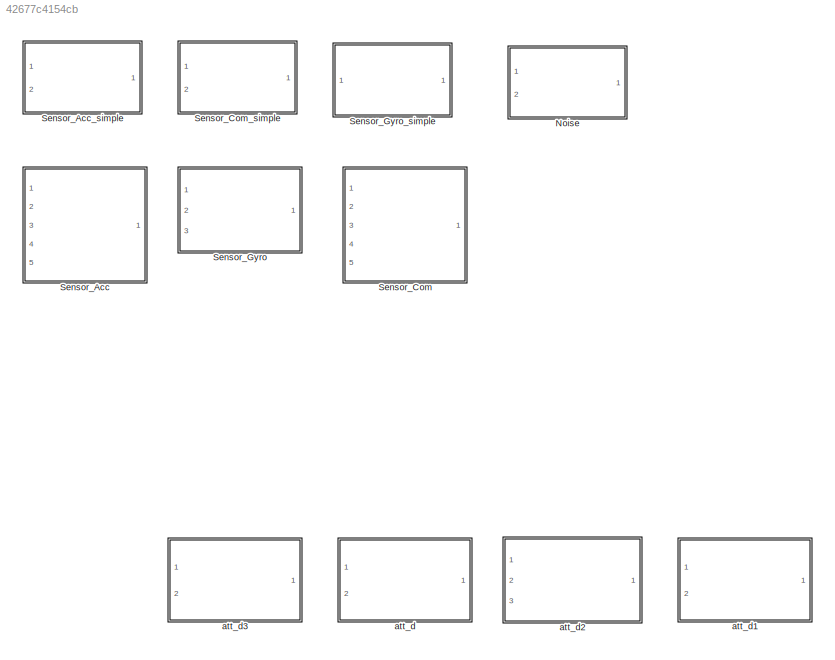
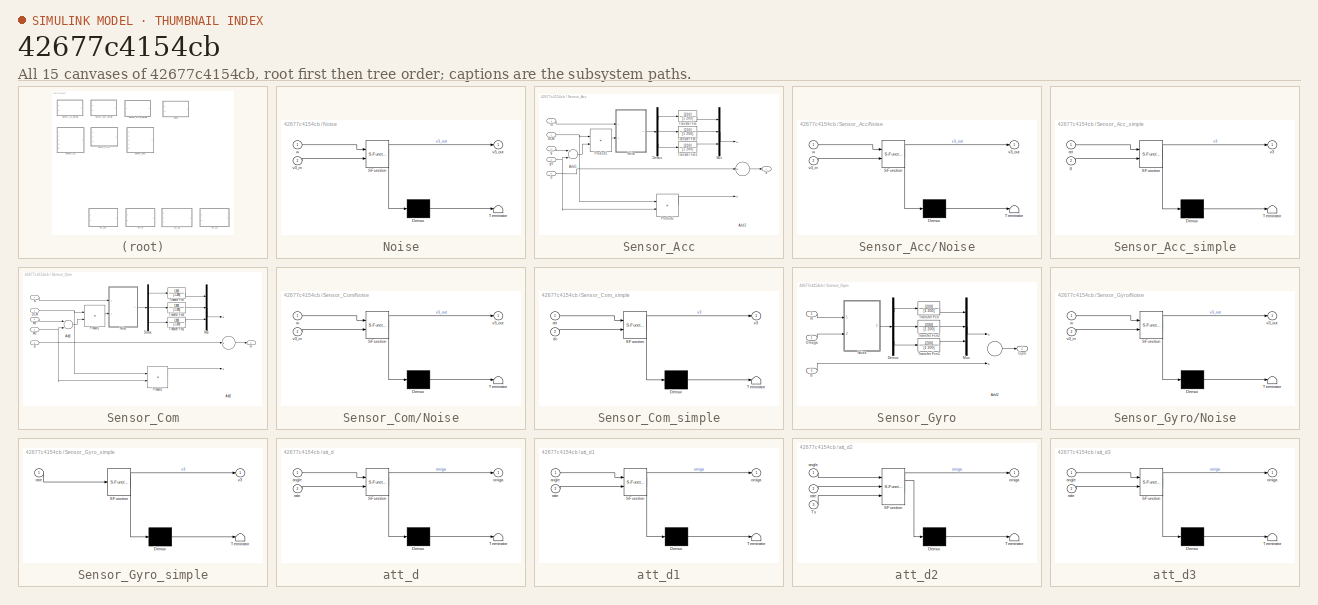
[diagram: thumbnail index - all 15 canvases of the model, root first then tree order]
MODEL slx_42677c4154cb
KIND library
BLOCK [SubSystem] Noise
  ErrorFcn = Stateflow.Translate.translate
  PermitHierarchicalResolution = ExplicitOnly
  Ports = [2, 1]
  RequestExecContextInheritance = off
  SFBlockType = MATLAB Function
  TreatAsAtomicUnit = on
BLOCK [Demux] Noise/ Demux 
  Outputs = 1
  Ports = [1, 1]
BLOCK [S-Function] Noise/ SFunction 
  EnableBusSupport = off
  FunctionName = sf_sfun
  PortCounts = [2 2]
  Ports = [2, 2]
  Tag = Stateflow S-Function Lib_Sensors 42
BLOCK [Terminator] Noise/ Terminator 
BLOCK [Inport] Noise/v3_in
  IconDisplay = Port number
  Port = 2
BLOCK [Outport] Noise/v3_out
  IconDisplay = Port number
BLOCK [Inport] Noise/w
  IconDisplay = Port number
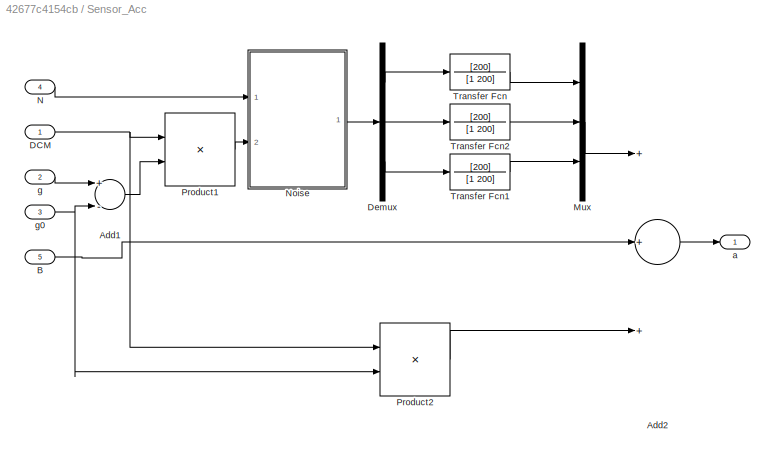
BLOCK [SubSystem] Sensor_Acc
  Ports = [5, 1]
  RequestExecContextInheritance = off
BLOCK [Sum] Sensor_Acc/Add1
  InputSameDT = off
  Inputs = +-
  OutDataTypeStr = Inherit: Inherit via internal rule
  Ports = [2, 1]
  SaturateOnIntegerOverflow = off
BLOCK [Sum] Sensor_Acc/Add2
  InputSameDT = off
  Inputs = +++
  OutDataTypeStr = Inherit: Inherit via internal rule
  Ports = [3, 1]
  SaturateOnIntegerOverflow = off
BLOCK [Inport] Sensor_Acc/B
  IconDisplay = Port number
  Port = 5
BLOCK [Inport] Sensor_Acc/DCM
  IconDisplay = Port number
  PortDimensions = [3,3]
BLOCK [Demux] Sensor_Acc/Demux
  DisplayOption = bar
  Outputs = 3
  Ports = [1, 3]
BLOCK [Mux] Sensor_Acc/Mux
  DisplayOption = bar
  Inputs = 3
  Ports = [3, 1]
BLOCK [Inport] Sensor_Acc/N
  IconDisplay = Port number
  Port = 4
  PortDimensions = [3,3]
BLOCK [SubSystem] Sensor_Acc/Noise
  ErrorFcn = Stateflow.Translate.translate
  PermitHierarchicalResolution = ExplicitOnly
  Ports = [2, 1]
  RequestExecContextInheritance = off
  SFBlockType = MATLAB Function
  TreatAsAtomicUnit = on
BLOCK [Demux] Sensor_Acc/Noise/ Demux 
  Outputs = 1
  Ports = [1, 1]
BLOCK [S-Function] Sensor_Acc/Noise/ SFunction 
  EnableBusSupport = off
  FunctionName = sf_sfun
  PortCounts = [2 2]
  Ports = [2, 2]
  Tag = Stateflow S-Function Lib_Sensors 1
BLOCK [Terminator] Sensor_Acc/Noise/ Terminator 
BLOCK [Inport] Sensor_Acc/Noise/v3_in
  IconDisplay = Port number
  Port = 2
BLOCK [Outport] Sensor_Acc/Noise/v3_out
  IconDisplay = Port number
BLOCK [Inport] Sensor_Acc/Noise/w
  IconDisplay = Port number
BLOCK [Product] Sensor_Acc/Product1
  InputSameDT = off
  Multiplication = Matrix(*)
  OutDataTypeStr = Inherit: Inherit via internal rule
  Ports = [2, 1]
  RndMeth = Floor
  SaturateOnIntegerOverflow = off
BLOCK [Product] Sensor_Acc/Product2
  InputSameDT = off
  Multiplication = Matrix(*)
  OutDataTypeStr = Inherit: Inherit via internal rule
  Ports = [2, 1]
  RndMeth = Floor
  SaturateOnIntegerOverflow = off
BLOCK [TransferFcn] Sensor_Acc/Transfer Fcn
  Denominator = [1 200]
  Numerator = [200]
BLOCK [TransferFcn] Sensor_Acc/Transfer Fcn1
  Denominator = [1 200]
  Numerator = [200]
BLOCK [TransferFcn] Sensor_Acc/Transfer Fcn2
  Denominator = [1 200]
  Numerator = [200]
BLOCK [Outport] Sensor_Acc/a
  IconDisplay = Port number
  PortDimensions = [3,1]
BLOCK [Inport] Sensor_Acc/g
  IconDisplay = Port number
  Port = 2
BLOCK [Inport] Sensor_Acc/g0
  IconDisplay = Port number
  Port = 3
BLOCK [SubSystem] Sensor_Acc_simple
  ErrorFcn = Stateflow.Translate.translate
  PermitHierarchicalResolution = ExplicitOnly
  Ports = [2, 1]
  RequestExecContextInheritance = off
  SFBlockType = MATLAB Function
  TreatAsAtomicUnit = on
BLOCK [Demux] Sensor_Acc_simple/ Demux 
  Outputs = 1
  Ports = [1, 1]
BLOCK [S-Function] Sensor_Acc_simple/ SFunction 
  EnableBusSupport = off
  FunctionName = sf_sfun
  PortCounts = [2 2]
  Ports = [2, 2]
  Tag = Stateflow S-Function Lib_Sensors 4
BLOCK [Terminator] Sensor_Acc_simple/ Terminator 
BLOCK [Inport] Sensor_Acc_simple/att
  IconDisplay = Port number
BLOCK [Inport] Sensor_Acc_simple/g
  IconDisplay = Port number
  Port = 2
BLOCK [Outport] Sensor_Acc_simple/v3
  IconDisplay = Port number
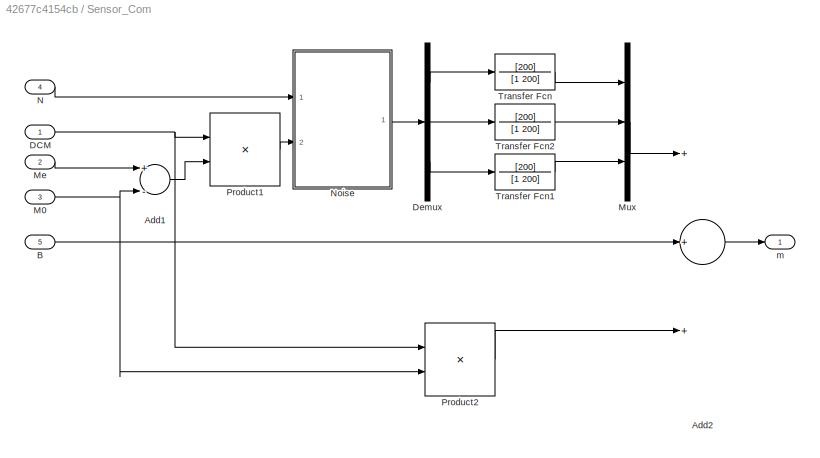
BLOCK [SubSystem] Sensor_Com
  Ports = [5, 1]
  RequestExecContextInheritance = off
BLOCK [Sum] Sensor_Com/Add1
  InputSameDT = off
  Inputs = +-
  OutDataTypeStr = Inherit: Inherit via internal rule
  Ports = [2, 1]
  SaturateOnIntegerOverflow = off
BLOCK [Sum] Sensor_Com/Add2
  InputSameDT = off
  Inputs = +++
  OutDataTypeStr = Inherit: Inherit via internal rule
  Ports = [3, 1]
  SaturateOnIntegerOverflow = off
BLOCK [Inport] Sensor_Com/B
  IconDisplay = Port number
  Port = 5
BLOCK [Inport] Sensor_Com/DCM
  IconDisplay = Port number
  PortDimensions = [3,3]
BLOCK [Demux] Sensor_Com/Demux
  DisplayOption = bar
  Outputs = 3
  Ports = [1, 3]
BLOCK [Inport] Sensor_Com/M0
  IconDisplay = Port number
  Port = 3
BLOCK [Inport] Sensor_Com/Me
  IconDisplay = Port number
  Port = 2
BLOCK [Mux] Sensor_Com/Mux
  DisplayOption = bar
  Inputs = 3
  Ports = [3, 1]
BLOCK [Inport] Sensor_Com/N
  IconDisplay = Port number
  Port = 4
  PortDimensions = [3,3]
BLOCK [SubSystem] Sensor_Com/Noise
  ErrorFcn = Stateflow.Translate.translate
  PermitHierarchicalResolution = ExplicitOnly
  Ports = [2, 1]
  RequestExecContextInheritance = off
  SFBlockType = MATLAB Function
  TreatAsAtomicUnit = on
BLOCK [Demux] Sensor_Com/Noise/ Demux 
  Outputs = 1
  Ports = [1, 1]
BLOCK [S-Function] Sensor_Com/Noise/ SFunction 
  EnableBusSupport = off
  FunctionName = sf_sfun
  PortCounts = [2 2]
  Ports = [2, 2]
  Tag = Stateflow S-Function Lib_Sensors 3
BLOCK [Terminator] Sensor_Com/Noise/ Terminator 
BLOCK [Inport] Sensor_Com/Noise/v3_in
  IconDisplay = Port number
  Port = 2
BLOCK [Outport] Sensor_Com/Noise/v3_out
  IconDisplay = Port number
BLOCK [Inport] Sensor_Com/Noise/w
  IconDisplay = Port number
BLOCK [Product] Sensor_Com/Product1
  InputSameDT = off
  Multiplication = Matrix(*)
  OutDataTypeStr = Inherit: Inherit via internal rule
  Ports = [2, 1]
  RndMeth = Floor
  SaturateOnIntegerOverflow = off
BLOCK [Product] Sensor_Com/Product2
  InputSameDT = off
  Multiplication = Matrix(*)
  OutDataTypeStr = Inherit: Inherit via internal rule
  Ports = [2, 1]
  RndMeth = Floor
  SaturateOnIntegerOverflow = off
BLOCK [TransferFcn] Sensor_Com/Transfer Fcn
  Denominator = [1 200]
  Numerator = [200]
BLOCK [TransferFcn] Sensor_Com/Transfer Fcn1
  Denominator = [1 200]
  Numerator = [200]
BLOCK [TransferFcn] Sensor_Com/Transfer Fcn2
  Denominator = [1 200]
  Numerator = [200]
BLOCK [Outport] Sensor_Com/m
  IconDisplay = Port number
  PortDimensions = [3,1]
BLOCK [SubSystem] Sensor_Com_simple
  ErrorFcn = Stateflow.Translate.translate
  PermitHierarchicalResolution = ExplicitOnly
  Ports = [2, 1]
  RequestExecContextInheritance = off
  SFBlockType = MATLAB Function
  TreatAsAtomicUnit = on
BLOCK [Demux] Sensor_Com_simple/ Demux 
  Outputs = 1
  Ports = [1, 1]
BLOCK [S-Function] Sensor_Com_simple/ SFunction 
  EnableBusSupport = off
  FunctionName = sf_sfun
  PortCounts = [2 2]
  Ports = [2, 2]
  Tag = Stateflow S-Function Lib_Sensors 8
BLOCK [Terminator] Sensor_Com_simple/ Terminator 
BLOCK [Inport] Sensor_Com_simple/att
  IconDisplay = Port number
BLOCK [Inport] Sensor_Com_simple/dc
  IconDisplay = Port number
  Port = 2
BLOCK [Outport] Sensor_Com_simple/v3
  IconDisplay = Port number
BLOCK [SubSystem] Sensor_Gyro
  Ports = [3, 1]
  RequestExecContextInheritance = off
BLOCK [Sum] Sensor_Gyro/Add2
  InputSameDT = off
  OutDataTypeStr = Inherit: Inherit via internal rule
  Ports = [2, 1]
  SaturateOnIntegerOverflow = off
BLOCK [Inport] Sensor_Gyro/B
  IconDisplay = Port number
  Port = 3
BLOCK [Demux] Sensor_Gyro/Demux
  DisplayOption = bar
  Outputs = 3
  Ports = [1, 3]
BLOCK [Outport] Sensor_Gyro/Gyro
  IconDisplay = Port number
  PortDimensions = [3,1]
BLOCK [Mux] Sensor_Gyro/Mux
  DisplayOption = bar
  Inputs = 3
  Ports = [3, 1]
BLOCK [Inport] Sensor_Gyro/N
  IconDisplay = Port number
  Port = 2
  PortDimensions = [3,3]
BLOCK [SubSystem] Sensor_Gyro/Noise
  ErrorFcn = Stateflow.Translate.translate
  PermitHierarchicalResolution = ExplicitOnly
  Ports = [2, 1]
  RequestExecContextInheritance = off
  SFBlockType = MATLAB Function
  TreatAsAtomicUnit = on
BLOCK [Demux] Sensor_Gyro/Noise/ Demux 
  Outputs = 1
  Ports = [1, 1]
BLOCK [S-Function] Sensor_Gyro/Noise/ SFunction 
  EnableBusSupport = on
  FunctionName = sf_sfun
  PortCounts = [2 2]
  Ports = [2, 2]
  Tag = Stateflow S-Function Lib_Sensors 2
BLOCK [Terminator] Sensor_Gyro/Noise/ Terminator 
BLOCK [Inport] Sensor_Gyro/Noise/v3_in
  IconDisplay = Port number
  Port = 2
BLOCK [Outport] Sensor_Gyro/Noise/v3_out
  IconDisplay = Port number
BLOCK [Inport] Sensor_Gyro/Noise/w
  IconDisplay = Port number
BLOCK [Inport] Sensor_Gyro/Omega
  IconDisplay = Port number
BLOCK [TransferFcn] Sensor_Gyro/Transfer Fcn
  Denominator = [1 200]
  Numerator = [200]
BLOCK [TransferFcn] Sensor_Gyro/Transfer Fcn1
  Denominator = [1 200]
  Numerator = [200]
BLOCK [TransferFcn] Sensor_Gyro/Transfer Fcn2
  Denominator = [1 200]
  Numerator = [200]
BLOCK [SubSystem] Sensor_Gyro_simple
  ErrorFcn = Stateflow.Translate.translate
  PermitHierarchicalResolution = ExplicitOnly
  Ports = [1, 1]
  RequestExecContextInheritance = off
  SFBlockType = MATLAB Function
  TreatAsAtomicUnit = on
BLOCK [Demux] Sensor_Gyro_simple/ Demux 
  Outputs = 1
  Ports = [1, 1]
BLOCK [S-Function] Sensor_Gyro_simple/ SFunction 
  EnableBusSupport = off
  FunctionName = sf_sfun
  PortCounts = [1 2]
  Ports = [1, 2]
  Tag = Stateflow S-Function Lib_Sensors 11
BLOCK [Terminator] Sensor_Gyro_simple/ Terminator 
BLOCK [Inport] Sensor_Gyro_simple/rate
  IconDisplay = Port number
BLOCK [Outport] Sensor_Gyro_simple/v3
  IconDisplay = Port number
BLOCK [SubSystem] att_d
  ErrorFcn = Stateflow.Translate.translate
  PermitHierarchicalResolution = ExplicitOnly
  Ports = [2, 1]
  RequestExecContextInheritance = off
  SFBlockType = MATLAB Function
  TreatAsAtomicUnit = on
BLOCK [Demux] att_d/ Demux 
  Outputs = 1
  Ports = [1, 1]
BLOCK [S-Function] att_d/ SFunction 
  EnableBusSupport = off
  FunctionName = sf_sfun
  PortCounts = [2 2]
  Ports = [2, 2]
  Tag = Stateflow S-Function Lib_Sensors 7
BLOCK [Terminator] att_d/ Terminator 
BLOCK [Inport] att_d/angle
  IconDisplay = Port number
BLOCK [Outport] att_d/omiga
  IconDisplay = Port number
BLOCK [Inport] att_d/rate
  IconDisplay = Port number
  Port = 2
BLOCK [SubSystem] att_d1
  ErrorFcn = Stateflow.Translate.translate
  PermitHierarchicalResolution = ExplicitOnly
  Ports = [2, 1]
  RequestExecContextInheritance = off
  SFBlockType = MATLAB Function
  TreatAsAtomicUnit = on
BLOCK [Demux] att_d1/ Demux 
  Outputs = 1
  Ports = [1, 1]
BLOCK [S-Function] att_d1/ SFunction 
  EnableBusSupport = off
  FunctionName = sf_sfun
  PortCounts = [2 2]
  Ports = [2, 2]
  Tag = Stateflow S-Function Lib_Sensors 38
BLOCK [Terminator] att_d1/ Terminator 
BLOCK [Inport] att_d1/angle
  IconDisplay = Port number
BLOCK [Outport] att_d1/omiga
  IconDisplay = Port number
BLOCK [Inport] att_d1/rate
  IconDisplay = Port number
  Port = 2
BLOCK [SubSystem] att_d2
  ErrorFcn = Stateflow.Translate.translate
  PermitHierarchicalResolution = ExplicitOnly
  Ports = [3, 1]
  RequestExecContextInheritance = off
  SFBlockType = MATLAB Function
  TreatAsAtomicUnit = on
BLOCK [Demux] att_d2/ Demux 
  Outputs = 1
  Ports = [1, 1]
BLOCK [S-Function] att_d2/ SFunction 
  EnableBusSupport = off
  FunctionName = sf_sfun
  PortCounts = [3 2]
  Ports = [3, 2]
  Tag = Stateflow S-Function Lib_Sensors 9
BLOCK [Terminator] att_d2/ Terminator 
BLOCK [Inport] att_d2/Ts
  IconDisplay = Port number
  Port = 3
BLOCK [Inport] att_d2/angle
  IconDisplay = Port number
BLOCK [Outport] att_d2/omiga
  IconDisplay = Port number
BLOCK [Inport] att_d2/rate
  IconDisplay = Port number
  Port = 2
BLOCK [SubSystem] att_d3
  ErrorFcn = Stateflow.Translate.translate
  PermitHierarchicalResolution = ExplicitOnly
  Ports = [2, 1]
  RequestExecContextInheritance = off
  SFBlockType = MATLAB Function
  TreatAsAtomicUnit = on
BLOCK [Demux] att_d3/ Demux 
  Outputs = 1
  Ports = [1, 1]
BLOCK [S-Function] att_d3/ SFunction 
  EnableBusSupport = off
  FunctionName = sf_sfun
  PortCounts = [2 2]
  Ports = [2, 2]
  Tag = Stateflow S-Function Lib_Sensors 39
BLOCK [Terminator] att_d3/ Terminator 
BLOCK [Inport] att_d3/angle
  IconDisplay = Port number
BLOCK [Outport] att_d3/omiga
  IconDisplay = Port number
BLOCK [Inport] att_d3/rate
  IconDisplay = Port number
  Port = 2
LINE Sensor_Acc/Add1:1 -> Sensor_Acc/Product1:2
LINE Sensor_Acc/Add2:1 -> Sensor_Acc/a:1
LINE Sensor_Acc/B:1 -> Sensor_Acc/Add2:2
NET Sensor_Acc/DCM:1 -> Sensor_Acc/Product1:1, Sensor_Acc/Product2:1
LINE Sensor_Acc/Demux:1 -> Sensor_Acc/Transfer Fcn:1
LINE Sensor_Acc/Demux:2 -> Sensor_Acc/Transfer Fcn2:1
LINE Sensor_Acc/Demux:3 -> Sensor_Acc/Transfer Fcn1:1
LINE Sensor_Acc/Mux:1 -> Sensor_Acc/Add2:1
LINE Sensor_Acc/N:1 -> Sensor_Acc/Noise:1
LINE Sensor_Acc/Noise:1 -> Sensor_Acc/Demux:1
LINE Sensor_Acc/Product1:1 -> Sensor_Acc/Noise:2
LINE Sensor_Acc/Product2:1 -> Sensor_Acc/Add2:3
LINE Sensor_Acc/Transfer Fcn1:1 -> Sensor_Acc/Mux:3
LINE Sensor_Acc/Transfer Fcn2:1 -> Sensor_Acc/Mux:2
LINE Sensor_Acc/Transfer Fcn:1 -> Sensor_Acc/Mux:1
NET Sensor_Acc/g0:1 -> Sensor_Acc/Add1:2, Sensor_Acc/Product2:2
LINE Sensor_Acc/g:1 -> Sensor_Acc/Add1:1
LINE Sensor_Com/Add1:1 -> Sensor_Com/Product1:2
LINE Sensor_Com/Add2:1 -> Sensor_Com/m:1
LINE Sensor_Com/B:1 -> Sensor_Com/Add2:2
NET Sensor_Com/DCM:1 -> Sensor_Com/Product1:1, Sensor_Com/Product2:1
LINE Sensor_Com/Demux:1 -> Sensor_Com/Transfer Fcn:1
LINE Sensor_Com/Demux:2 -> Sensor_Com/Transfer Fcn2:1
LINE Sensor_Com/Demux:3 -> Sensor_Com/Transfer Fcn1:1
NET Sensor_Com/M0:1 -> Sensor_Com/Add1:2, Sensor_Com/Product2:2
LINE Sensor_Com/Me:1 -> Sensor_Com/Add1:1
LINE Sensor_Com/Mux:1 -> Sensor_Com/Add2:1
LINE Sensor_Com/N:1 -> Sensor_Com/Noise:1
LINE Sensor_Com/Noise:1 -> Sensor_Com/Demux:1
LINE Sensor_Com/Product1:1 -> Sensor_Com/Noise:2
LINE Sensor_Com/Product2:1 -> Sensor_Com/Add2:3
LINE Sensor_Com/Transfer Fcn1:1 -> Sensor_Com/Mux:3
LINE Sensor_Com/Transfer Fcn2:1 -> Sensor_Com/Mux:2
LINE Sensor_Com/Transfer Fcn:1 -> Sensor_Com/Mux:1
LINE Sensor_Gyro/Add2:1 -> Sensor_Gyro/Gyro:1
LINE Sensor_Gyro/B:1 -> Sensor_Gyro/Add2:2
LINE Sensor_Gyro/Demux:1 -> Sensor_Gyro/Transfer Fcn:1
LINE Sensor_Gyro/Demux:2 -> Sensor_Gyro/Transfer Fcn2:1
LINE Sensor_Gyro/Demux:3 -> Sensor_Gyro/Transfer Fcn1:1
LINE Sensor_Gyro/Mux:1 -> Sensor_Gyro/Add2:1
LINE Sensor_Gyro/N:1 -> Sensor_Gyro/Noise:1
LINE Sensor_Gyro/Noise:1 -> Sensor_Gyro/Demux:1
LINE Sensor_Gyro/Omega:1 -> Sensor_Gyro/Noise:2
LINE Sensor_Gyro/Transfer Fcn1:1 -> Sensor_Gyro/Mux:3
LINE Sensor_Gyro/Transfer Fcn2:1 -> Sensor_Gyro/Mux:2
LINE Sensor_Gyro/Transfer Fcn:1 -> Sensor_Gyro/Mux:1
note: NET lines group one-source signal fan-out (src -> all destinations, sorted); 1:1 wires keep LINE
CHART Sensor_Acc/Noise states=1 transitions=1
  STATE_LABEL 'eML_blk_kernel()'
  STATE_LABEL 'SCRIPT:\nfunction v3_out=Noise(w,v3_in)\nv3_out=sqrt(w)*randn(3,1)+v3_in;\n'
CHART Sensor_Gyro/Noise states=1 transitions=1
  STATE_LABEL 'eML_blk_kernel()'
  STATE_LABEL 'SCRIPT:\nfunction v3_out=Noise(w,v3_in)\nv3_out=sqrt(w)*randn(3,1)+v3_in;\n'
CHART Sensor_Com/Noise states=1 transitions=1
  STATE_LABEL 'eML_blk_kernel()'
  STATE_LABEL 'SCRIPT:\nfunction v3_out=Noise(w,v3_in)\nv3_out=sqrt(w)*randn(3,1)+v3_in;\n'
CHART Sensor_Acc_simple states=1 transitions=1
  STATE_LABEL 'eML_blk_kernel()'
  STATE_LABEL 'SCRIPT:\nfunction v3=Acc_out(att,g)\n\nroll=att(1);\npitch=att(2);\nyaw=att(3);\ncr=cos(roll);  sr=sin(roll);\ncp=cos(pitch); sp=sin(pitch);\ncy=cos(yaw);   sy=sin(yaw);\n% syms cr sr cp sp cy sy\n% RZ:Rotate Z axis\n% RY:Rotate Y axis\n% RX:Rotate X axis\n% syms  RZ RY RX\n%from earth to body\n% RZ:Rotate Z axis\n%右旋角度y为正\nRZ = [  cy   sy   0;\n       -sy   cy   0;\n        0    0    1];\n\n% RY:Rotate Y axis\n%上仰角度P为...<+667ch>'
CHART att_d states=1 transitions=1
  STATE_LABEL 'eML_blk_kernel()'
  STATE_LABEL "SCRIPT:\nfunction omiga=att(angle,rate)\n%% 用于在连续域解算欧拉角\n%  yd  yaw的导数，pd  pitch的导数， rd roll的导数\n% [p,q,r]'表示B系下飞行器绕自身旋转的角速度。\nroll=angle(1);\npitch=angle(2);\nyaw=angle(3);\np=rate(1);\nq=rate(2);\nr=rate(3);\n%#codegen\ncr=cos(roll);  sr=sin(roll);\ncp=cos(pitch); sp=sin(pitch);\ncy=cos(yaw);   sy=sin(yaw);\nab = [cp*cr     ,    -sr,      0;\n      cp*sr     ,     cr,      0;\n       -sp      ,      0,      1];\n...<+23ch>"
CHART Sensor_Com_simple states=1 transitions=1
  STATE_LABEL 'eML_blk_kernel()'
  STATE_LABEL 'SCRIPT:\nfunction v3=Com_out(att,dc)\n\nroll=att(1);\npitch=att(2);\nyaw=att(3);\ncr=cos(roll);  sr=sin(roll);\ncp=cos(pitch); sp=sin(pitch);\ncy=cos(yaw);   sy=sin(yaw);\n% syms cr sr cp sp cy sy\n% RZ:Rotate Z axis\n% RY:Rotate Y axis\n% RX:Rotate X axis\n% syms  RZ RY RX\n%from earth to body\n% RZ:Rotate Z axis\n%右旋角度y为正\nRZ = [  cy   sy   0;\n       -sy   cy   0;\n        0    0    1];\n\n% RY:Rotate Y axis\n%上仰角度P...<+668ch>'
CHART att_d2 states=1 transitions=1
  STATE_LABEL 'eML_blk_kernel()'
  STATE_LABEL "SCRIPT:\nfunction omiga=att(angle,rate,Ts)\n%% 用于在离散域解算欧拉角\n%  yd  yaw的导数，pd  pitch的导数， rd roll的导数\n% [p,q,r]'表示B系下飞行器绕自身旋转的角速度。\nroll=angle(1);\npitch=angle(2);\nyaw=angle(3);\np=rate(1);\nq=rate(2);\nr=rate(3);\n%#codegen\ncr=cos(roll);  sr=sin(roll);\ncp=cos(pitch); sp=sin(pitch);\ncy=cos(yaw);   sy=sin(yaw);\nab = [cp*cr     ,    -sr,      0;\n      cp*sr     ,     cr,      0;\n       -sp      ,      0,      1...<+49ch>"
CHART Sensor_Gyro_simple states=1 transitions=1
  STATE_LABEL 'eML_blk_kernel()'
  STATE_LABEL 'SCRIPT:\nfunction v3=Gyro_out(rate)\nv3=rate;\n'
CHART att_d1 states=1 transitions=1
  STATE_LABEL 'eML_blk_kernel()'
  STATE_LABEL "SCRIPT:\nfunction omiga=att(angle,rate)\n%% 用于在连续域解算欧拉角\n%  yd  yaw的导数，pd  pitch的导数， rd roll的导数\n% [p,q,r]'表示B系下飞行器绕自身旋转的角速度。\nroll=angle(1);\npitch=angle(2);\nyaw=angle(3);\np=rate(1);\nq=rate(2);\nr=rate(3);\n%#codegen\ncr=cos(roll);  sr=sin(roll);\ncp=cos(pitch); sp=sin(pitch);\ncy=cos(yaw);   sy=sin(yaw);\nab = [cp*cr     ,    -sr,      0;\n      cp*sr     ,     cr,      0;\n       -sp      ,      0,      1];\n...<+28ch>"
CHART att_d3 states=1 transitions=1
  STATE_LABEL 'eML_blk_kernel()'
  STATE_LABEL "SCRIPT:\nfunction omiga=att(angle,rate)\n%% 用于在连续域解算欧拉角\n%  yd  yaw的导数，pd  pitch的导数， rd roll的导数\n% [p,q,r]'表示B系下飞行器绕自身旋转的角速度。\nroll=angle(1);\npitch=angle(2);\nyaw=angle(3);\np=rate(1);\nq=rate(2);\nr=rate(3);\n%#codegen\ncr=cos(roll);  sr=sin(roll);\ncp=cos(pitch); sp=sin(pitch);\ncy=cos(yaw);   sy=sin(yaw);\nab = [1     ,    sr*tan(pitch),      cr*tan(pitch);\n      0     ,     cr,      -sr;\n       0      ,    ...<+45ch>"
CHART Noise states=1 transitions=1
  STATE_LABEL 'eML_blk_kernel()'
  STATE_LABEL 'SCRIPT:\nfunction v3_out=Noise(w,v3_in)\nv3_out=sqrt(w)*randn(3,1)+v3_in;\n'
